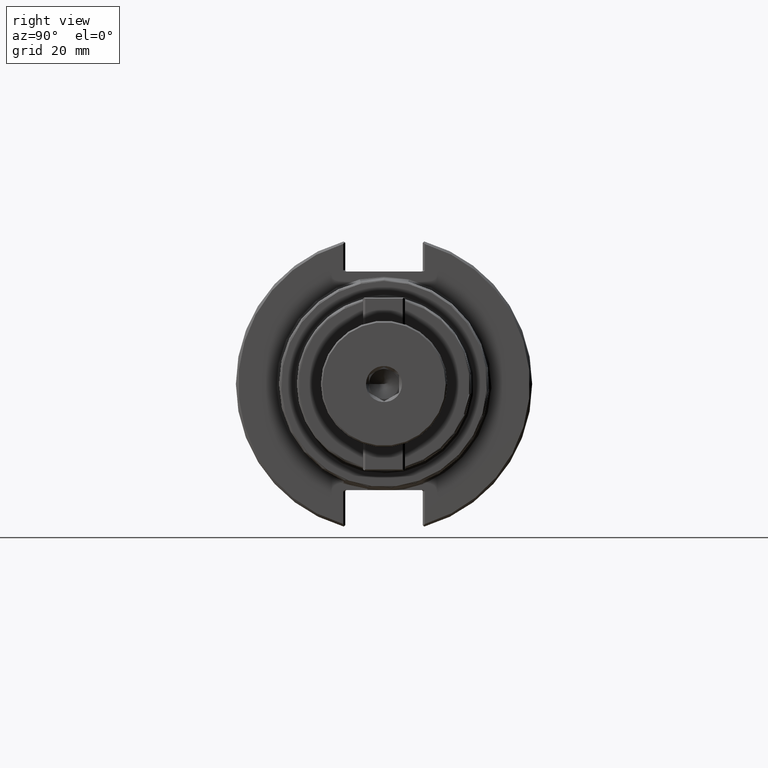
[diagram: clean part render]
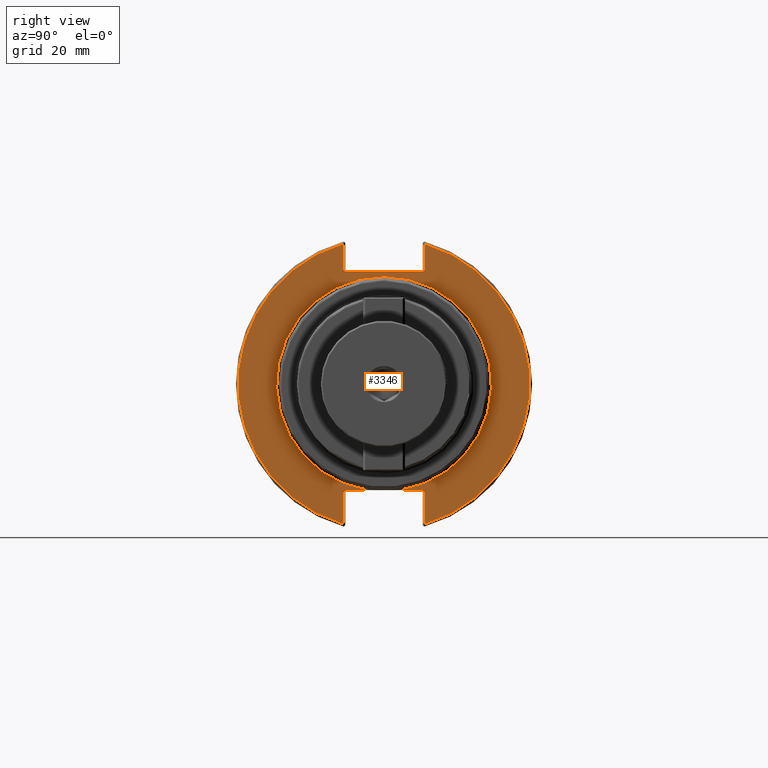
[diagram: same view with one face highlighted and labeled with its STEP entity id]
A machine part, right view. The second image highlights one B-rep face of the part: STEP entity #3346.
In plain terms, the highlighted planar face has unit normal (1, 0, 0).
Its self-contained STEP definition (entity closure, byte-faithful):
#47=ELLIPSE('',#3724,0.0282842712474619,0.02);
#51=ELLIPSE('',#3733,0.0282842712474619,0.02);
#58=ELLIPSE('',#3747,0.028284271247462,0.02);
#62=ELLIPSE('',#3756,0.0282842712474619,0.02);
#256=PLANE('',#3785);
#401=FACE_OUTER_BOUND('',#601,.T.);
#601=EDGE_LOOP('',(#2660,#2661,#2662,#2663,#2664,#2665,#2666,#2667,#2668,
#2669,#2670,#2671,#2672,#2673,#2674));
#753=CIRCLE('',#3668,1.405);
#755=CIRCLE('',#3670,1.405);
#795=CIRCLE('',#3783,1.9075);
#797=CIRCLE('',#3786,1.9075);
#945=LINE('',#6454,#1171);
#953=LINE('',#6486,#1179);
#963=LINE('',#6523,#1189);
#971=LINE('',#6555,#1197);
#978=LINE('',#6604,#1204);
#982=LINE('',#6633,#1208);
#983=LINE('',#6635,#1209);
#1171=VECTOR('',#4344,0.393700787401575);
#1179=VECTOR('',#4370,0.393700787401575);
#1189=VECTOR('',#4400,0.393700787401575);
#1197=VECTOR('',#4426,0.393700787401575);
#1204=VECTOR('',#4467,0.393700787401575);
#1208=VECTOR('',#4491,0.393700787401575);
#1209=VECTOR('',#4494,0.393700787401575);
#1384=VERTEX_POINT('',#5256);
#1385=VERTEX_POINT('',#5257);
#1386=VERTEX_POINT('',#5269);
#1465=VERTEX_POINT('',#6430);
#1466=VERTEX_POINT('',#6432);
#1472=VERTEX_POINT('',#6450);
#1474=VERTEX_POINT('',#6462);
#1475=VERTEX_POINT('',#6463);
#1481=VERTEX_POINT('',#6482);
#1488=VERTEX_POINT('',#6508);
#1489=VERTEX_POINT('',#6510);
#1492=VERTEX_POINT('',#6522);
#1498=VERTEX_POINT('',#6542);
#1499=VERTEX_POINT('',#6544);
#1501=VERTEX_POINT('',#6554);
#1734=EDGE_CURVE('',#1384,#1386,#753,.T.);
#1736=EDGE_CURVE('',#1386,#1385,#755,.T.);
#1848=EDGE_CURVE('',#1465,#1466,#47,.T.);
#1858=EDGE_CURVE('',#1472,#1465,#945,.T.);
#1861=EDGE_CURVE('',#1474,#1475,#51,.T.);
#1872=EDGE_CURVE('',#1481,#1474,#953,.T.);
#1883=EDGE_CURVE('',#1488,#1489,#58,.T.);
#1888=EDGE_CURVE('',#1489,#1492,#963,.T.);
#1898=EDGE_CURVE('',#1498,#1499,#62,.T.);
#1902=EDGE_CURVE('',#1499,#1501,#971,.T.);
#1923=EDGE_CURVE('',#1498,#1466,#978,.T.);
#1931=EDGE_CURVE('',#1492,#1472,#795,.T.);
#1934=EDGE_CURVE('',#1384,#1475,#982,.T.);
#1935=EDGE_CURVE('',#1501,#1481,#797,.T.);
#1936=EDGE_CURVE('',#1488,#1385,#983,.T.);
#2660=ORIENTED_EDGE('',*,*,#1734,.F.);
#2661=ORIENTED_EDGE('',*,*,#1934,.T.);
#2662=ORIENTED_EDGE('',*,*,#1861,.F.);
#2663=ORIENTED_EDGE('',*,*,#1872,.F.);
#2664=ORIENTED_EDGE('',*,*,#1935,.F.);
#2665=ORIENTED_EDGE('',*,*,#1902,.F.);
#2666=ORIENTED_EDGE('',*,*,#1898,.F.);
#2667=ORIENTED_EDGE('',*,*,#1923,.T.);
#2668=ORIENTED_EDGE('',*,*,#1848,.F.);
#2669=ORIENTED_EDGE('',*,*,#1858,.F.);
#2670=ORIENTED_EDGE('',*,*,#1931,.F.);
#2671=ORIENTED_EDGE('',*,*,#1888,.F.);
#2672=ORIENTED_EDGE('',*,*,#1883,.F.);
#2673=ORIENTED_EDGE('',*,*,#1936,.T.);
#2674=ORIENTED_EDGE('',*,*,#1736,.F.);
#3346=ADVANCED_FACE('',(#401),#256,.T.);
#3668=AXIS2_PLACEMENT_3D('',#5270,#4167,#4168);
#3670=AXIS2_PLACEMENT_3D('',#5272,#4171,#4172);
#3724=AXIS2_PLACEMENT_3D('',#6433,#4325,#4326);
#3733=AXIS2_PLACEMENT_3D('',#6464,#4350,#4351);
#3747=AXIS2_PLACEMENT_3D('',#6511,#4391,#4392);
#3756=AXIS2_PLACEMENT_3D('',#6545,#4418,#4419);
#3783=AXIS2_PLACEMENT_3D('',#6626,#4485,#4486);
#3785=AXIS2_PLACEMENT_3D('',#6632,#4489,#4490);
#3786=AXIS2_PLACEMENT_3D('',#6634,#4492,#4493);
#4167=DIRECTION('center_axis',(1.,0.,0.));
#4168=DIRECTION('ref_axis',(0.,-1.,1.22464679914735E-16));
#4171=DIRECTION('center_axis',(1.,0.,0.));
#4172=DIRECTION('ref_axis',(0.,-1.,1.22464679914735E-16));
#4325=DIRECTION('center_axis',(1.,0.,0.));
#4326=DIRECTION('ref_axis',(0.,-1.,1.93170824149086E-16));
#4344=DIRECTION('',(0.,0.,-1.));
#4350=DIRECTION('center_axis',(1.,0.,0.));
#4351=DIRECTION('ref_axis',(0.,1.,-1.93170824149086E-16));
#4370=DIRECTION('',(0.,0.,1.));
#4391=DIRECTION('center_axis',(1.,0.,0.));
#4392=DIRECTION('ref_axis',(-3.41480999208029E-17,-1.,-9.65854120745431E-17));
#4400=DIRECTION('',(0.,0.,-1.));
#4418=DIRECTION('center_axis',(1.,0.,0.));
#4419=DIRECTION('ref_axis',(0.,1.,1.93170824149086E-16));
#4426=DIRECTION('',(0.,0.,1.));
#4467=DIRECTION('',(0.,-1.,6.01790140173613E-31));
#4485=DIRECTION('center_axis',(-1.,0.,0.));
#4486=DIRECTION('ref_axis',(0.,-1.,0.));
#4489=DIRECTION('center_axis',(1.,0.,0.));
#4490=DIRECTION('ref_axis',(0.,0.,-1.));
#4491=DIRECTION('',(0.,1.,4.17909819565459E-33));
#4492=DIRECTION('center_axis',(-1.,0.,0.));
#4493=DIRECTION('ref_axis',(0.,1.,0.));
#4494=DIRECTION('',(0.,1.,4.17909819565459E-33));
#5256=CARTESIAN_POINT('',(0.75,0.217901353827828,-1.388));
#5257=CARTESIAN_POINT('',(0.75,-0.217901353827828,-1.388));
#5269=CARTESIAN_POINT('',(0.75,-1.72062875280203E-16,1.405));
#5270=CARTESIAN_POINT('Origin',(0.75,0.,0.));
#5272=CARTESIAN_POINT('Origin',(0.75,0.,0.));
#6430=CARTESIAN_POINT('',(0.75,-0.532499999999821,1.492));
#6432=CARTESIAN_POINT('',(0.75,-0.504215728752359,1.472));
#6433=CARTESIAN_POINT('Origin',(0.75,-0.504215728752359,1.492));
#6450=CARTESIAN_POINT('',(0.75,-0.532499999999821,1.83166590840147));
#6454=CARTESIAN_POINT('',(0.75,-0.532499999999821,0.736));
#6462=CARTESIAN_POINT('',(0.75,0.532500000000284,-1.408));
#6463=CARTESIAN_POINT('',(0.75,0.504215728752822,-1.388));
#6464=CARTESIAN_POINT('Origin',(0.75,0.504215728752822,-1.408));
#6482=CARTESIAN_POINT('',(0.75,0.532500000000284,-1.83166590840134));
#6486=CARTESIAN_POINT('',(0.75,0.532500000000284,-0.694));
#6508=CARTESIAN_POINT('',(0.75,-0.504215728752254,-1.388));
#6510=CARTESIAN_POINT('',(0.75,-0.532499999999715,-1.408));
#6511=CARTESIAN_POINT('Origin',(0.75,-0.504215728752254,-1.408));
#6522=CARTESIAN_POINT('',(0.75,-0.532499999999715,-1.8316659084015));
#6523=CARTESIAN_POINT('',(0.75,-0.532499999999715,-0.694));
#6542=CARTESIAN_POINT('',(0.75,0.504215728752717,1.472));
#6544=CARTESIAN_POINT('',(0.75,0.532500000000179,1.492));
#6545=CARTESIAN_POINT('Origin',(0.75,0.504215728752717,1.492));
#6554=CARTESIAN_POINT('',(0.75,0.532500000000179,1.83166590840137));
#6555=CARTESIAN_POINT('',(0.75,0.532500000000179,0.736));
#6604=CARTESIAN_POINT('',(0.75,0.828125000000089,1.472));
#6626=CARTESIAN_POINT('Origin',(0.75,0.,0.));
#6632=CARTESIAN_POINT('Origin',(0.75,1.65625,0.));
#6633=CARTESIAN_POINT('',(0.75,0.828125000000135,-1.388));
#6634=CARTESIAN_POINT('Origin',(0.75,0.,0.));
#6635=CARTESIAN_POINT('',(0.75,0.828125000000135,-1.388));